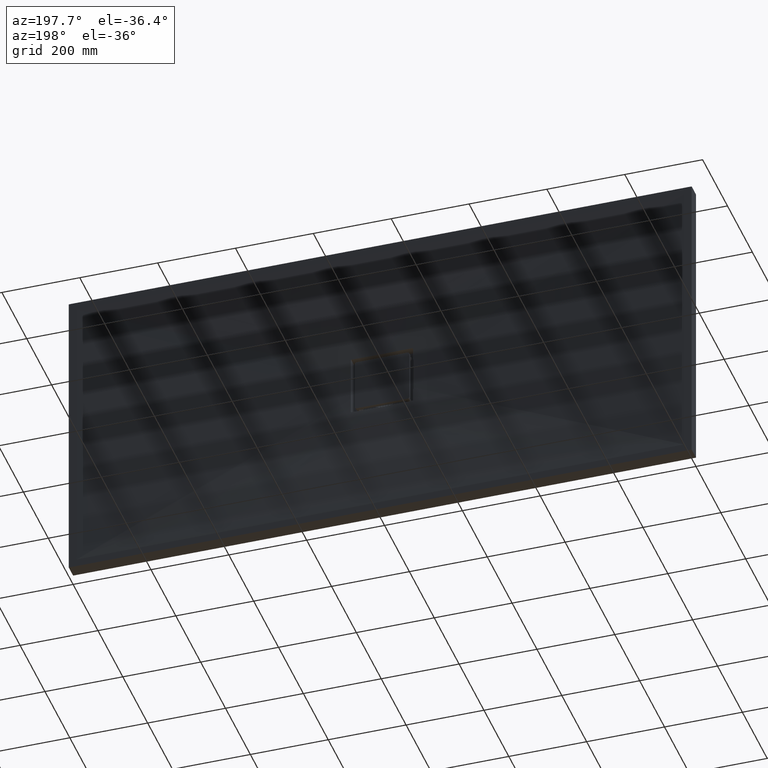
[diagram: clean part render]
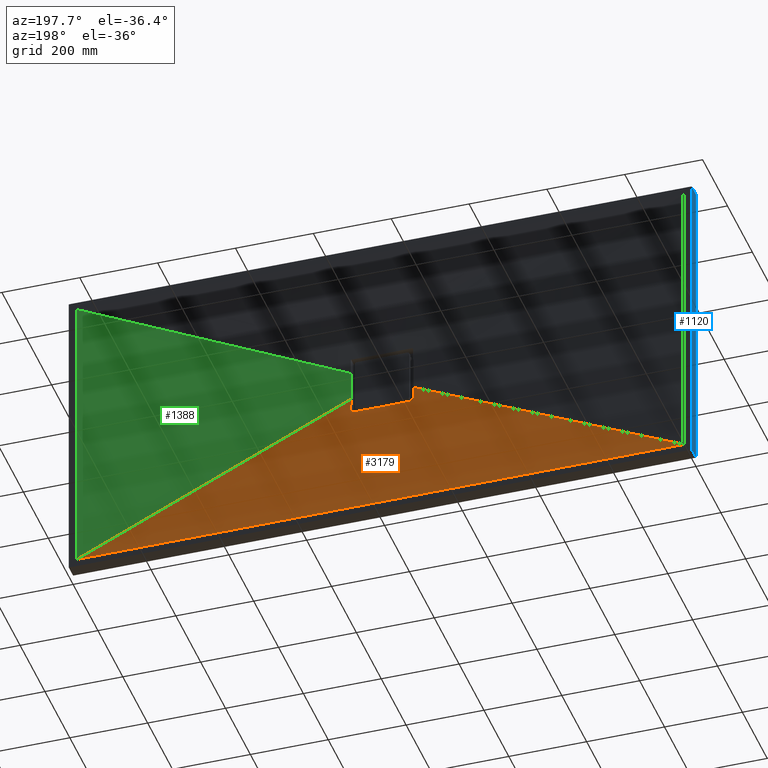
[diagram: same view with three faces highlighted in distinct colors, each labeled with its STEP entity id]
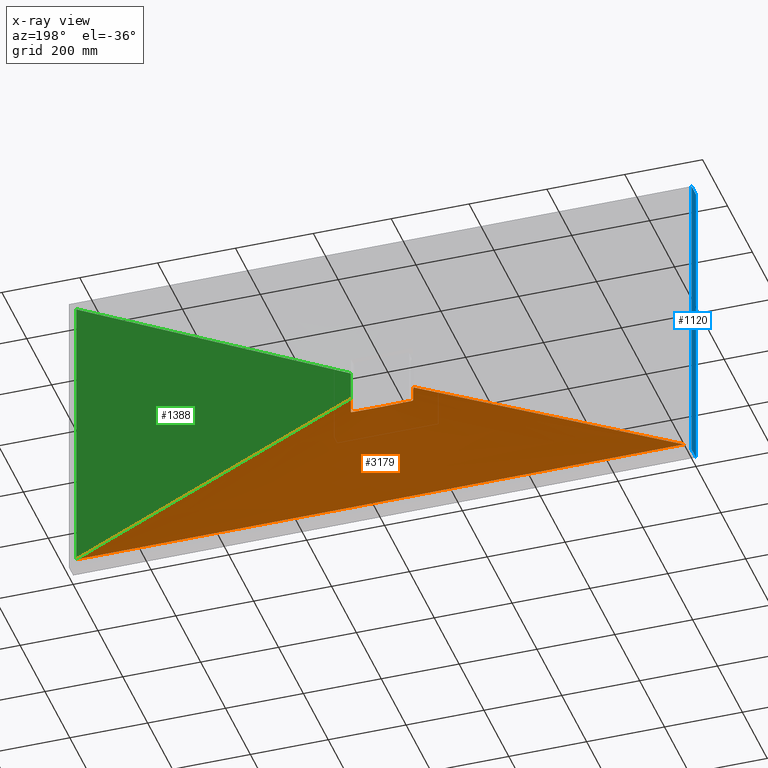
[diagram: x-ray of the same camera — body ghosted, the three highlighted faces saturated]
A machine part, auxiliary view with three faces highlighted in distinct colors.
The next image is the same camera in x-ray (body ghosted, the three faces saturated) — at least one of them is partly hidden behind the body in this view.
Their STEP definitions:

[orange] entity #3179 — the highlighted face is a freeform B-spline surface patch.
#3 = CARTESIAN_POINT ( 'NONE',  ( 65.63602154870589800, 19.99999999999999600, -45.84979169517532000 ) ) ;
#18 = CARTESIAN_POINT ( 'NONE',  ( 69.09643847232803200, 19.99999999999999600, -40.44716199775876900 ) ) ;
#21 = CARTESIAN_POINT ( 'NONE',  ( 64.99999999999749900, 35.00000000000000000, -379.9999999999999400 ) ) ;
#24 = B_SPLINE_CURVE_WITH_KNOTS ( 'NONE', 3,
 ( #1628, #1024, #3094, #1529, #2800, #1744, #859, #1281, #456, #765, #700, #261, #1057, #1073 ),
 .UNSPECIFIED., .F., .F.,
 ( 4, 2, 2, 2, 2, 2, 4 ),
 ( 0.0000000000000000000, 0.01937604881219790600, 0.03875209762439579100, 0.07750419524879159600, 0.1162562928731874100, 0.1356323416853852900, 0.1550083904975831900 ),
 .UNSPECIFIED. ) ;
#38 = ORIENTED_EDGE ( 'NONE', *, *, #2749, .T. ) ;
#39 = CARTESIAN_POINT ( 'NONE',  ( 4.167867337943003600, 20.00000000000000400, -79.99999999999998600 ) ) ;
#41 = CARTESIAN_POINT ( 'NONE',  ( -77.50000000000018500, 20.91526528105309900, -79.99999999999992900 ) ) ;
#64 = CARTESIAN_POINT ( 'NONE',  ( -4.167867337943405900, 19.99999999999999600, -79.99999999999998600 ) ) ;
#78 = CARTESIAN_POINT ( 'NONE',  ( 649.9999999999989800, 35.00000000000000000, -380.0000000000000000 ) ) ;
#80 = CARTESIAN_POINT ( 'NONE',  ( -32.50000000000254400, 35.00000000000000000, -379.9999999999999400 ) ) ;
#83 = CARTESIAN_POINT ( 'NONE',  ( -8.335427550194083300, 20.00000000000000000, -79.67233849711938400 ) ) ;
#90 = CARTESIAN_POINT ( 'NONE',  ( -65.00000000000255800, 35.00000000000000000, -379.9999999999999400 ) ) ;
#102 = CARTESIAN_POINT ( 'NONE',  ( -130.0000000000025600, 35.00000000000000000, -379.9999999999999400 ) ) ;
#107 = CARTESIAN_POINT ( 'NONE',  ( 129.9999999999975600, 35.00000000000000000, -379.9999999999999400 ) ) ;
#117 = CARTESIAN_POINT ( 'NONE',  ( -20.53644059850319100, 19.99999999999999300, -77.42613998269730800 ) ) ;
#119 = CARTESIAN_POINT ( 'NONE',  ( -162.5000000000025300, 35.00000000000000000, -379.9999999999999400 ) ) ;
#126 = CARTESIAN_POINT ( 'NONE',  ( -28.28534235702283800, 20.00000000000000700, -74.94325822128438100 ) ) ;
#142 = CARTESIAN_POINT ( 'NONE',  ( -227.5000000000024200, 35.00000000000000000, -379.9999999999999400 ) ) ;
#146 = EDGE_CURVE ( 'NONE', #3117, #1746, #2819, .T. ) ;
#148 = CARTESIAN_POINT ( 'NONE',  ( -32.01744375276299300, 20.00000000000000000, -73.41996666027260700 ) ) ;
#165 = CARTESIAN_POINT ( 'NONE',  ( -260.0000000000023300, 35.00000000000000000, -380.0000000000000000 ) ) ;
#175 = DIRECTION ( 'NONE',  ( -0.8988268892732868000, 0.01904076927280638400, -0.4378900229792936900 ) ) ;
#180 = CARTESIAN_POINT ( 'NONE',  ( -39.09556257958874400, 20.00000000000000000, -69.90811966747743600 ) ) ;
#189 = CARTESIAN_POINT ( 'NONE',  ( -425.9595947534909900, 27.50000000000000400, -207.5187769311877400 ) ) ;
#190 = CARTESIAN_POINT ( 'NONE',  ( -325.0000000000021600, 35.00000000000000000, -380.0000000000000000 ) ) ;
#196 = CARTESIAN_POINT ( 'NONE',  ( 63.68564301497404800, 20.00000000000000000, -48.53671480306866900 ) ) ;
#199 = CARTESIAN_POINT ( 'NONE',  ( -42.44147885884424900, 19.99999999999999600, -67.92007849769858300 ) ) ;
#200 = CARTESIAN_POINT ( 'NONE',  ( -80.00000000000024200, 20.17118407334168500, -38.97435897435888600 ) ) ;
#204 = CARTESIAN_POINT ( 'NONE',  ( 617.4999999999988600, 35.00000000000000000, -380.0000000000000000 ) ) ;
#207 = CARTESIAN_POINT ( 'NONE',  ( -357.5000000000021000, 35.00000000000000000, -380.0000000000000000 ) ) ;
#208 = CARTESIAN_POINT ( 'NONE',  ( 70.60675592568493600, 20.00000000000000400, -37.73149647661578100 ) ) ;
#210 = CARTESIAN_POINT ( 'NONE',  ( 78.60808864571888000, 20.92364626502050800, -79.74699066051117300 ) ) ;
#217 = CARTESIAN_POINT ( 'NONE',  ( 747.4999999999996600, 35.00000000000000000, -380.0000000000000000 ) ) ;
#221 = CARTESIAN_POINT ( 'NONE',  ( -48.68330336269389800, 19.99999999999999600, -63.59522123992633900 ) ) ;
#230 = CARTESIAN_POINT ( 'NONE',  ( -422.5000000000018800, 35.00000000000000000, -380.0000000000000000 ) ) ;
#232 = CARTESIAN_POINT ( 'NONE',  ( 59.31540533946460400, 20.00000000000000700, -53.78992935039195800 ) ) ;
#245 = CARTESIAN_POINT ( 'NONE',  ( -51.57932262493469000, 20.00000000000000000, -61.25885752582696900 ) ) ;
#259 = B_SPLINE_CURVE_WITH_KNOTS ( 'NONE', 3,
 ( #3104, #1263, #1278, #3223, #3245, #210, #699, #2141, #3169, #2176, #2186, #1112, #1851, #2166, #805, #812 ),
 .UNSPECIFIED., .F., .F.,
 ( 4, 2, 2, 2, 2, 2, 2, 4 ),
 ( 1.387778780781445700E-017, 0.0004882322326047627200, 0.0009764644652095115600, 0.001464696697814260300, 0.001952928930419009200, 0.002441161163023758000, 0.002929393395628506700, 0.003905857860837966400 ),
 .UNSPECIFIED. ) ;
#261 = CARTESIAN_POINT ( 'NONE',  ( 64.58342503299745400, 20.73014216491183200, -79.99999999999997200 ) ) ;
#263 = CARTESIAN_POINT ( 'NONE',  ( -455.0000000000017600, 35.00000000000000000, -380.0000000000000000 ) ) ;
#265 = CARTESIAN_POINT ( 'NONE',  ( -56.89525059378132000, 19.99999999999998900, -56.35605209458425700 ) ) ;
#270 = CARTESIAN_POINT ( 'NONE',  ( -520.0000000000014800, 35.00000000000000000, -380.0000000000000000 ) ) ;
#284 = CARTESIAN_POINT ( 'NONE',  ( -59.31540533946499500, 20.00000000000000000, -53.78992935039193700 ) ) ;
#288 = CARTESIAN_POINT ( 'NONE',  ( 79.99999999999984400, 20.17118407334168900, -38.97435897435897100 ) ) ;
#308 = CARTESIAN_POINT ( 'NONE',  ( -552.5000000000013600, 35.00000000000000000, -380.0000000000000000 ) ) ;
#313 = CARTESIAN_POINT ( 'NONE',  ( 32.49999999999749900, 35.00000000000000000, -379.9999999999999400 ) ) ;
#314 = ORIENTED_EDGE ( 'NONE', *, *, #2531, .T. ) ;
#339 = CARTESIAN_POINT ( 'NONE',  ( -63.68564301497446700, 20.00000000000000700, -48.53671480306866900 ) ) ;
#340 = CARTESIAN_POINT ( 'NONE',  ( -617.5000000000009100, 35.00000000000000000, -379.9999999999999400 ) ) ;
#345 = CARTESIAN_POINT ( 'NONE',  ( -65.63602154870631000, 19.99999999999999600, -45.84979169517529800 ) ) ;
#354 = EDGE_LOOP ( 'NONE', ( #1327, #430, #1359, #314, #2703, #380, #2976, #38 ) ) ;
#371 = CARTESIAN_POINT ( 'NONE',  ( -650.0000000000008000, 35.00000000000000000, -379.9999999999999400 ) ) ;
#376 = CARTESIAN_POINT ( 'NONE',  ( -69.09643847232841600, 19.99999999999999600, -40.44716199775876900 ) ) ;
#380 = ORIENTED_EDGE ( 'NONE', *, *, #903, .T. ) ;
#390 = CARTESIAN_POINT ( 'NONE',  ( 8.335427550193681900, 20.00000000000000000, -79.67233849711937000 ) ) ;
#403 = VERTEX_POINT ( 'NONE', #3202 ) ;
#411 = CARTESIAN_POINT ( 'NONE',  ( -715.0000000000004500, 35.00000000000000000, -379.9999999999999400 ) ) ;
#421 = CARTESIAN_POINT ( 'NONE',  ( -70.60675592568532000, 20.00000000000000400, -37.73149647661577400 ) ) ;
#430 = ORIENTED_EDGE ( 'NONE', *, *, #1472, .T. ) ;
#434 = CARTESIAN_POINT ( 'NONE',  ( -747.5000000000002300, 35.00000000000000000, -379.9999999999999400 ) ) ;
#441 = CARTESIAN_POINT ( 'NONE',  ( 779.9999999999998900, 35.00000000000000000, -379.9999999999999400 ) ) ;
#445 = CARTESIAN_POINT ( 'NONE',  ( -780.0000000000001100, 35.00000000000000000, -379.9999999999999400 ) ) ;
#456 = CARTESIAN_POINT ( 'NONE',  ( 25.83379188199321400, 20.16846388635039100, -79.99999999999995700 ) ) ;
#473 = DIRECTION ( 'NONE',  ( -1.000000000000000000, 0.0000000000000000000, 0.0000000000000000000 ) ) ;
#521 = CARTESIAN_POINT ( 'NONE',  ( 552.4999999999986400, 35.00000000000000000, -380.0000000000000000 ) ) ;
#696 = CARTESIAN_POINT ( 'NONE',  ( 227.4999999999976700, 35.00000000000000000, -379.9999999999999400 ) ) ;
#699 = CARTESIAN_POINT ( 'NONE',  ( 78.75163500503391800, 20.92348560418235300, -79.67027101366657900 ) ) ;
#700 = CARTESIAN_POINT ( 'NONE',  ( 51.66692436919245800, 20.53990979900312700, -79.99999999999998600 ) ) ;
#706 = EDGE_CURVE ( 'NONE', #1951, #2971, #259, .T. ) ;
#739 = CARTESIAN_POINT ( 'NONE',  ( 16.51998364309756800, 20.00000000000000000, -78.38527294381185600 ) ) ;
#765 = CARTESIAN_POINT ( 'NONE',  ( 45.20869479708817800, 20.44336612708412200, -79.99999999999997200 ) ) ;
#805 = CARTESIAN_POINT ( 'NONE',  ( 79.99999999999985800, 20.88981712303077000, -77.83004879686744500 ) ) ;
#812 = CARTESIAN_POINT ( 'NONE',  ( 79.99999999999981500, 20.88082018124752500, -77.49999999999998600 ) ) ;
#859 = CARTESIAN_POINT ( 'NONE',  ( -12.91947408764547900, 20.00000982222253400, -79.99999999999992900 ) ) ;
#871 = B_SPLINE_CURVE_WITH_KNOTS ( 'NONE', 3,
 ( #1801, #2678, #2640, #2240, #2299, #2310 ),
 .UNSPECIFIED., .F., .F.,
 ( 4, 2, 4 ),
 ( 0.0000000000000000000, 0.01926608808140744000, 0.03853217616281488100 ),
 .UNSPECIFIED. ) ;
#903 = EDGE_CURVE ( 'NONE', #2971, #1746, #871, .T. ) ;
#935 = CARTESIAN_POINT ( 'NONE',  ( 425.9595947534906500, 27.50000000000000400, -207.5187769311877700 ) ) ;
#972 = CARTESIAN_POINT ( 'NONE',  ( -71.91918950698180900, 20.00000000000000000, -35.03755386237558900 ) ) ;
#979 = CARTESIAN_POINT ( 'NONE',  ( 77.49999999999982900, 20.91526528105310900, -79.99999999999995700 ) ) ;
#996 = CARTESIAN_POINT ( 'NONE',  ( -16.51998364309797300, 19.99999999999999600, -78.38527294381182700 ) ) ;
#1024 = CARTESIAN_POINT ( 'NONE',  ( -71.04194233863492500, 20.82418576970605900, -79.99999999999995700 ) ) ;
#1057 = CARTESIAN_POINT ( 'NONE',  ( 71.04169101482052900, 20.82418222522700500, -80.00000000000002800 ) ) ;
#1073 = CARTESIAN_POINT ( 'NONE',  ( 77.49999999999982900, 20.91526528105310900, -79.99999999999995700 ) ) ;
#1112 = CARTESIAN_POINT ( 'NONE',  ( 79.66882854547465300, 20.91066941404019600, -78.75426155804932200 ) ) ;
#1145 = CARTESIAN_POINT ( 'NONE',  ( 519.9999999999984100, 35.00000000000000000, -380.0000000000000000 ) ) ;
#1167 = CARTESIAN_POINT ( 'NONE',  ( 779.9999999999998900, 35.00000000000000000, -379.9999999999999400 ) ) ;
#1206 = VERTEX_POINT ( 'NONE', #41 ) ;
#1243 = CARTESIAN_POINT ( 'NONE',  ( 51.57932262493429200, 19.99999999999999600, -61.25885752582699000 ) ) ;
#1263 = CARTESIAN_POINT ( 'NONE',  ( 77.66507043163296900, 20.91759330830825900, -79.99999999999997200 ) ) ;
#1278 = CARTESIAN_POINT ( 'NONE',  ( 77.82738987331569500, 20.91941526584665600, -79.98381153245485100 ) ) ;
#1281 = CARTESIAN_POINT ( 'NONE',  ( 12.91705562372911400, 19.99999017869684100, -79.99999999999994300 ) ) ;
#1327 = ORIENTED_EDGE ( 'NONE', *, *, #2378, .F. ) ;
#1359 = ORIENTED_EDGE ( 'NONE', *, *, #2899, .T. ) ;
#1383 = CARTESIAN_POINT ( 'NONE',  ( 454.9999999999980700, 35.00000000000000000, -380.0000000000000000 ) ) ;
#1451 = CARTESIAN_POINT ( 'NONE',  ( 48.68330336269350800, 20.00000000000000700, -63.59522123992633900 ) ) ;
#1467 = CARTESIAN_POINT ( 'NONE',  ( 162.4999999999975800, 35.00000000000000000, -379.9999999999999400 ) ) ;
#1472 = EDGE_CURVE ( 'NONE', #1482, #403, #2666, .T. ) ;
#1482 = VERTEX_POINT ( 'NONE', #3278 ) ;
#1529 = CARTESIAN_POINT ( 'NONE',  ( -51.66789955657417000, 20.53992422645193000, -79.99999999999990100 ) ) ;
#1628 = CARTESIAN_POINT ( 'NONE',  ( -77.50000000000018500, 20.91526528105309900, -79.99999999999992900 ) ) ;
#1669 = B_SPLINE_SURFACE_WITH_KNOTS ( 'NONE', 3, 1, ( 
 ( #445, #972 ),
 ( #434, #421 ),
 ( #411, #376 ),
 ( #371, #345 ),
 ( #340, #339 ),
 ( #308, #284 ),
 ( #270, #265 ),
 ( #263, #245 ),
 ( #230, #221 ),
 ( #207, #199 ),
 ( #190, #180 ),
 ( #165, #148 ),
 ( #142, #126 ),
 ( #119, #117 ),
 ( #102, #996 ),
 ( #90, #83 ),
 ( #80, #64 ),
 ( #313, #39 ),
 ( #21, #390 ),
 ( #107, #739 ),
 ( #1467, #2782 ),
 ( #696, #3113 ),
 ( #3074, #2685 ),
 ( #2466, #2241 ),
 ( #1890, #1727 ),
 ( #1703, #1451 ),
 ( #1383, #1243 ),
 ( #1145, #3033 ),
 ( #521, #232 ),
 ( #204, #196 ),
 ( #78, #3 ),
 ( #2547, #18 ),
 ( #217, #208 ),
 ( #3115, #3219 ) ),
 .UNSPECIFIED., .F., .F., .F.,
 ( 4, 2, 2, 2, 2, 2, 2, 2, 2, 2, 2, 2, 2, 2, 2, 2, 4 ),
 ( 2, 2 ),
 ( 0.0000000000000000000, 0.06249999999999998600, 0.1249999999999999700, 0.1874999999999999400, 0.2499999999999999400, 0.3124999999999999400, 0.3749999999999998900, 0.4374999999999999400, 0.5000000000000000000, 0.5625000000000000000, 0.6250000000000000000, 0.6875000000000000000, 0.7499999999999998900, 0.8124999999999998900, 0.8749999999999998900, 0.9374999999999998900, 1.000000000000000000 ),
 ( 0.0000000000000000000, 1.000000000000000000 ),
 .UNSPECIFIED. ) ;
#1703 = CARTESIAN_POINT ( 'NONE',  ( 422.4999999999980100, 35.00000000000000000, -380.0000000000000000 ) ) ;
#1727 = CARTESIAN_POINT ( 'NONE',  ( 42.44147885884385100, 19.99999999999999600, -67.92007849769856900 ) ) ;
#1744 = CARTESIAN_POINT ( 'NONE',  ( -25.83575296585158300, 20.16849003916327700, -79.99999999999990100 ) ) ;
#1746 = VERTEX_POINT ( 'NONE', #288 ) ;
#1801 = CARTESIAN_POINT ( 'NONE',  ( 79.99999999999981500, 20.88082018124752500, -77.49999999999998600 ) ) ;
#1851 = CARTESIAN_POINT ( 'NONE',  ( 79.74652486146108300, 20.90772418718538400, -78.60887397578544300 ) ) ;
#1890 = CARTESIAN_POINT ( 'NONE',  ( 357.4999999999979000, 35.00000000000000000, -380.0000000000000000 ) ) ;
#1903 = FACE_OUTER_BOUND ( 'NONE', #354, .T. ) ;
#1951 = VERTEX_POINT ( 'NONE', #979 ) ;
#2141 = CARTESIAN_POINT ( 'NONE',  ( 79.02331721310437700, 20.92217702405269700, -79.48901260097754600 ) ) ;
#2166 = CARTESIAN_POINT ( 'NONE',  ( 79.93369622469767000, 20.89788703278221900, -78.15804595222739700 ) ) ;
#2176 = CARTESIAN_POINT ( 'NONE',  ( 79.38255669104917400, 20.91777674830626300, -79.15304345921750000 ) ) ;
#2186 = CARTESIAN_POINT ( 'NONE',  ( 79.48604226813573300, 20.91571099035990900, -79.02729349662870100 ) ) ;
#2240 = CARTESIAN_POINT ( 'NONE',  ( 79.99999999999982900, 20.32500420699052100, -51.81776310176734100 ) ) ;
#2241 = CARTESIAN_POINT ( 'NONE',  ( 39.09556257958834600, 19.99999999999999600, -69.90811966747740800 ) ) ;
#2264 = DIRECTION ( 'NONE',  ( -0.8988268892732869100, -0.01904076927280637700, 0.4378900229792934700 ) ) ;
#2299 = CARTESIAN_POINT ( 'NONE',  ( 79.99999999999992900, 20.23647958024087500, -45.39627497638789300 ) ) ;
#2310 = CARTESIAN_POINT ( 'NONE',  ( 79.99999999999984400, 20.17118407334168900, -38.97435897435897100 ) ) ;
#2355 = CARTESIAN_POINT ( 'NONE',  ( 79.99999999999981500, 20.88082018124752500, -77.49999999999998600 ) ) ;
#2378 = EDGE_CURVE ( 'NONE', #1482, #2884, #3054, .T. ) ;
#2466 = CARTESIAN_POINT ( 'NONE',  ( 324.9999999999978400, 35.00000000000000000, -380.0000000000000000 ) ) ;
#2474 = CARTESIAN_POINT ( 'NONE',  ( -77.50000000000018500, 20.91526528105309900, -79.99999999999992900 ) ) ;
#2479 = CARTESIAN_POINT ( 'NONE',  ( -77.83014303288055700, 20.91992136616198300, -79.99999999999995700 ) ) ;
#2487 = CARTESIAN_POINT ( 'NONE',  ( -78.15822712927328600, 20.92263223277539200, -79.93365587166617600 ) ) ;
#2493 = CARTESIAN_POINT ( 'NONE',  ( -78.60912615202225600, 20.92364416022802600, -79.74640271161519000 ) ) ;
#2497 = CARTESIAN_POINT ( 'NONE',  ( -78.75455503439691500, 20.92348090553447500, -79.66865903924281200 ) ) ;
#2500 = CARTESIAN_POINT ( 'NONE',  ( -79.02756730855372800, 20.92214693808416100, -79.48583193665980700 ) ) ;
#2512 = CARTESIAN_POINT ( 'NONE',  ( -79.15330567327399100, 20.92099491071355300, -79.38232675072526900 ) ) ;
#2516 = CARTESIAN_POINT ( 'NONE',  ( -79.38374377257788700, 20.91775553067563100, -79.15169096535946400 ) ) ;
#2531 = EDGE_CURVE ( 'NONE', #1206, #1951, #24, .T. ) ;
#2534 = CARTESIAN_POINT ( 'NONE',  ( -79.48922544385557400, 20.91563681333540700, -79.02303659941517800 ) ) ;
#2538 = CARTESIAN_POINT ( 'NONE',  ( -79.67042079298224200, 20.91061151295204500, -78.75137201943749700 ) ) ;
#2546 = CARTESIAN_POINT ( 'NONE',  ( -79.74711135334476400, 20.90770367966287700, -78.60783971361219400 ) ) ;
#2547 = CARTESIAN_POINT ( 'NONE',  ( 714.9999999999994300, 35.00000000000000000, -380.0000000000000000 ) ) ;
#2581 = CARTESIAN_POINT ( 'NONE',  ( -79.87242764546799400, 20.90109666377056300, -78.30523619665685000 ) ) ;
#2585 = CARTESIAN_POINT ( 'NONE',  ( -79.92041763625931600, 20.89740054680597900, -78.14658210755773400 ) ) ;
#2593 = CARTESIAN_POINT ( 'NONE',  ( -79.98382034224749800, 20.88952902318444100, -77.82730179218359000 ) ) ;
#2621 = CARTESIAN_POINT ( 'NONE',  ( -80.00000000000019900, 20.88531866984212500, -77.66502504785958600 ) ) ;
#2640 = CARTESIAN_POINT ( 'NONE',  ( 79.99999999999987200, 20.55955026306167700, -64.65968027067567900 ) ) ;
#2654 = CARTESIAN_POINT ( 'NONE',  ( -80.00000000000017100, 20.88082018124751800, -77.49999999999992900 ) ) ;
#2666 = B_SPLINE_CURVE_WITH_KNOTS ( 'NONE', 3,
 ( #200, #2964, #3294, #3275, #3214, #3070 ),
 .UNSPECIFIED., .F., .F.,
 ( 4, 2, 4 ),
 ( 0.0000000000000000000, 0.01926608808140742300, 0.03853217616281481800 ),
 .UNSPECIFIED. ) ;
#2678 = CARTESIAN_POINT ( 'NONE',  ( 79.99999999999981500, 20.70581750273649400, -71.08010478641738000 ) ) ;
#2685 = CARTESIAN_POINT ( 'NONE',  ( 32.01744375276259500, 20.00000000000000000, -73.41996666027259300 ) ) ;
#2703 = ORIENTED_EDGE ( 'NONE', *, *, #706, .T. ) ;
#2749 = EDGE_CURVE ( 'NONE', #3117, #2884, #2929, .T. ) ;
#2769 = CARTESIAN_POINT ( 'NONE',  ( -780.0000000000001100, 35.00000000000000000, -379.9999999999999400 ) ) ;
#2782 = CARTESIAN_POINT ( 'NONE',  ( 20.53644059850278600, 20.00000000000000000, -77.42613998269735000 ) ) ;
#2800 = CARTESIAN_POINT ( 'NONE',  ( -45.20990639448810800, 20.44338415415032600, -79.99999999999992900 ) ) ;
#2819 = LINE ( 'NONE', #935, #2820 ) ;
#2820 = VECTOR ( 'NONE', #2264, 1000.000000000000200 ) ;
#2884 = VERTEX_POINT ( 'NONE', #2769 ) ;
#2899 = EDGE_CURVE ( 'NONE', #403, #1206, #3044, .T. ) ;
#2929 = LINE ( 'NONE', #441, #2970 ) ;
#2951 = VECTOR ( 'NONE', #175, 1000.000000000000100 ) ;
#2964 = CARTESIAN_POINT ( 'NONE',  ( -80.00000000000025600, 20.23647958024087900, -45.39627497638787900 ) ) ;
#2970 = VECTOR ( 'NONE', #473, 1000.000000000000000 ) ;
#2971 = VERTEX_POINT ( 'NONE', #2355 ) ;
#2976 = ORIENTED_EDGE ( 'NONE', *, *, #146, .F. ) ;
#3033 = CARTESIAN_POINT ( 'NONE',  ( 56.89525059378094300, 20.00000000000000000, -56.35605209458427800 ) ) ;
#3044 = B_SPLINE_CURVE_WITH_KNOTS ( 'NONE', 3,
 ( #2654, #2621, #2593, #2585, #2581, #2546, #2538, #2534, #2516, #2512, #2500, #2497, #2493, #2487, #2479, #2474 ),
 .UNSPECIFIED., .F., .F.,
 ( 4, 2, 2, 2, 2, 2, 2, 4 ),
 ( 0.0000000000000000000, 0.0004882323058037042000, 0.0009764646116074084000, 0.001464696917411112700, 0.001952929223214816800, 0.002441161529018521100, 0.002929393834822225400, 0.003905858446429656200 ),
 .UNSPECIFIED. ) ;
#3054 = LINE ( 'NONE', #189, #2951 ) ;
#3070 = CARTESIAN_POINT ( 'NONE',  ( -80.00000000000017100, 20.88082018124751800, -77.49999999999992900 ) ) ;
#3074 = CARTESIAN_POINT ( 'NONE',  ( 259.9999999999977300, 35.00000000000000000, -380.0000000000000000 ) ) ;
#3094 = CARTESIAN_POINT ( 'NONE',  ( -64.58391960340213700, 20.73014938383708700, -79.99999999999992900 ) ) ;
#3104 = CARTESIAN_POINT ( 'NONE',  ( 77.49999999999982900, 20.91526528105310900, -79.99999999999995700 ) ) ;
#3113 = CARTESIAN_POINT ( 'NONE',  ( 28.28534235702241900, 19.99999999999999600, -74.94325822128436700 ) ) ;
#3115 = CARTESIAN_POINT ( 'NONE',  ( 779.9999999999998900, 35.00000000000000000, -379.9999999999999400 ) ) ;
#3117 = VERTEX_POINT ( 'NONE', #1167 ) ;
#3169 = CARTESIAN_POINT ( 'NONE',  ( 79.15195886678475300, 20.92100926310206100, -79.38350850158073500 ) ) ;
#3179 = ADVANCED_FACE ( 'NONE', ( #1903 ), #1669, .F. ) ;
#3202 = CARTESIAN_POINT ( 'NONE',  ( -80.00000000000017100, 20.88082018124751800, -77.49999999999992900 ) ) ;
#3214 = CARTESIAN_POINT ( 'NONE',  ( -80.00000000000022700, 20.70581750273648700, -71.08010478641730900 ) ) ;
#3219 = CARTESIAN_POINT ( 'NONE',  ( 71.91918950698142500, 20.00000000000000000, -35.03755386237560300 ) ) ;
#3223 = CARTESIAN_POINT ( 'NONE',  ( 78.14675063949775300, 20.92209702544252900, -79.92037548083236200 ) ) ;
#3245 = CARTESIAN_POINT ( 'NONE',  ( 78.30544561150691200, 20.92295813301355500, -79.87235849780337600 ) ) ;
#3275 = CARTESIAN_POINT ( 'NONE',  ( -80.00000000000015600, 20.55955026306167400, -64.65968027067562200 ) ) ;
#3278 = CARTESIAN_POINT ( 'NONE',  ( -80.00000000000024200, 20.17118407334168500, -38.97435897435888600 ) ) ;
#3294 = CARTESIAN_POINT ( 'NONE',  ( -80.00000000000017100, 20.32500420699052800, -51.81776310176733300 ) ) ;

[blue] entity #1120 — the highlighted planar face has unit normal (1, 0, 0).
#22 = VERTEX_POINT ( 'NONE', #1911 ) ;
#52 = DIRECTION ( 'NONE',  ( 0.0000000000000000000, 0.0000000000000000000, 1.000000000000000000 ) ) ;
#56 = LINE ( 'NONE', #1969, #591 ) ;
#71 = ORIENTED_EDGE ( 'NONE', *, *, #1207, .T. ) ;
#147 = CARTESIAN_POINT ( 'NONE',  ( -800.0000000000001100, 35.00000000000000000, -399.9999999999999400 ) ) ;
#227 = ORIENTED_EDGE ( 'NONE', *, *, #2357, .F. ) ;
#469 = EDGE_LOOP ( 'NONE', ( #71, #227, #2091, #2870 ) ) ;
#504 = DIRECTION ( 'NONE',  ( -0.0000000000000000000, -1.000000000000000000, -0.0000000000000000000 ) ) ;
#591 = VECTOR ( 'NONE', #3287, 1000.000000000000000 ) ;
#817 = EDGE_CURVE ( 'NONE', #2450, #2446, #1750, .T. ) ;
#1120 = ADVANCED_FACE ( 'NONE', ( #1169 ), #2754, .F. ) ;
#1169 = FACE_OUTER_BOUND ( 'NONE', #469, .T. ) ;
#1207 = EDGE_CURVE ( 'NONE', #2446, #22, #2576, .T. ) ;
#1575 = CARTESIAN_POINT ( 'NONE',  ( -800.0000000000001100, 0.0000000000000000000, -399.9999999999999400 ) ) ;
#1750 = LINE ( 'NONE', #147, #1763 ) ;
#1763 = VECTOR ( 'NONE', #504, 1000.000000000000000 ) ;
#1764 = CARTESIAN_POINT ( 'NONE',  ( -800.0000000000001100, 35.00000000000000000, -399.9999999999999400 ) ) ;
#1877 = CARTESIAN_POINT ( 'NONE',  ( -800.0000000000001100, 35.00000000000000000, 400.0000000000000600 ) ) ;
#1911 = CARTESIAN_POINT ( 'NONE',  ( -800.0000000000001100, 0.0000000000000000000, 400.0000000000000600 ) ) ;
#1969 = CARTESIAN_POINT ( 'NONE',  ( -800.0000000000001100, 35.00000000000000000, 400.0000000000000600 ) ) ;
#2091 = ORIENTED_EDGE ( 'NONE', *, *, #2628, .F. ) ;
#2106 = AXIS2_PLACEMENT_3D ( 'NONE', #3015, #2720, #2682 ) ;
#2277 = CARTESIAN_POINT ( 'NONE',  ( -800.0000000000001100, 0.0000000000000000000, -399.9999999999999400 ) ) ;
#2328 = VERTEX_POINT ( 'NONE', #1877 ) ;
#2357 = EDGE_CURVE ( 'NONE', #2328, #22, #56, .T. ) ;
#2446 = VERTEX_POINT ( 'NONE', #2277 ) ;
#2450 = VERTEX_POINT ( 'NONE', #1764 ) ;
#2576 = LINE ( 'NONE', #1575, #2605 ) ;
#2605 = VECTOR ( 'NONE', #52, 1000.000000000000000 ) ;
#2628 = EDGE_CURVE ( 'NONE', #2450, #2328, #3076, .T. ) ;
#2682 = DIRECTION ( 'NONE',  ( 0.0000000000000000000, 0.0000000000000000000, -1.000000000000000000 ) ) ;
#2720 = DIRECTION ( 'NONE',  ( 1.000000000000000000, 0.0000000000000000000, 0.0000000000000000000 ) ) ;
#2753 = DIRECTION ( 'NONE',  ( 0.0000000000000000000, 0.0000000000000000000, 1.000000000000000000 ) ) ;
#2754 = PLANE ( 'NONE',  #2106 ) ;
#2870 = ORIENTED_EDGE ( 'NONE', *, *, #817, .T. ) ;
#2893 = CARTESIAN_POINT ( 'NONE',  ( -800.0000000000001100, 35.00000000000000000, -399.9999999999999400 ) ) ;
#3015 = CARTESIAN_POINT ( 'NONE',  ( -800.0000000000001100, 35.00000000000000000, -399.9999999999999400 ) ) ;
#3018 = VECTOR ( 'NONE', #2753, 1000.000000000000000 ) ;
#3076 = LINE ( 'NONE', #2893, #3018 ) ;
#3287 = DIRECTION ( 'NONE',  ( -0.0000000000000000000, -1.000000000000000000, -0.0000000000000000000 ) ) ;

[green] entity #1388 — the highlighted face is a freeform B-spline surface patch.
#108 = CARTESIAN_POINT ( 'NONE',  ( 76.35475575284441200, 20.00000000000000400, 24.05963620144375200 ) ) ;
#146 = EDGE_CURVE ( 'NONE', #3117, #1746, #2819, .T. ) ;
#257 = CARTESIAN_POINT ( 'NONE',  ( 779.9999999999997700, 35.00000000000000000, -31.66666666666586500 ) ) ;
#288 = CARTESIAN_POINT ( 'NONE',  ( 79.99999999999984400, 20.17118407334168900, -38.97435897435897100 ) ) ;
#297 = CARTESIAN_POINT ( 'NONE',  ( 779.9999999999998900, 35.00000000000000000, 380.0000000000000600 ) ) ;
#317 = CARTESIAN_POINT ( 'NONE',  ( 79.99999999999987200, 20.00000000000000000, -3.075104510152721500 ) ) ;
#538 = CARTESIAN_POINT ( 'NONE',  ( 779.9999999999997700, 35.00000000000000000, 316.6666666666669700 ) ) ;
#587 = EDGE_CURVE ( 'NONE', #839, #3152, #2786, .T. ) ;
#597 = FACE_OUTER_BOUND ( 'NONE', #741, .T. ) ;
#609 = EDGE_CURVE ( 'NONE', #1746, #3152, #1705, .T. ) ;
#672 = CARTESIAN_POINT ( 'NONE',  ( 77.20953429688154300, 20.00000000000000400, -21.16358934372487300 ) ) ;
#733 = DIRECTION ( 'NONE',  ( 0.0000000000000000000, 0.0000000000000000000, -1.000000000000000000 ) ) ;
#741 = EDGE_LOOP ( 'NONE', ( #3052, #2083, #1737, #998 ) ) ;
#768 = CARTESIAN_POINT ( 'NONE',  ( 79.99999999999984400, 20.07378911010035700, -25.98311821214705100 ) ) ;
#818 = CARTESIAN_POINT ( 'NONE',  ( 779.9999999999998900, 35.00000000000000000, -348.3333333333331400 ) ) ;
#839 = VERTEX_POINT ( 'NONE', #297 ) ;
#887 = VECTOR ( 'NONE', #733, 1000.000000000000000 ) ;
#913 = LINE ( 'NONE', #2242, #887 ) ;
#917 = CARTESIAN_POINT ( 'NONE',  ( 79.99999999999984400, 20.17118407334168900, -38.97435897435897100 ) ) ;
#934 = CARTESIAN_POINT ( 'NONE',  ( 779.9999999999997700, 35.00000000000000000, -126.6666666666659300 ) ) ;
#935 = CARTESIAN_POINT ( 'NONE',  ( 425.9595947534906500, 27.50000000000000400, -207.5187769311877700 ) ) ;
#992 = CARTESIAN_POINT ( 'NONE',  ( 79.99999999999984400, 20.17118407334168900, 38.97435897435907700 ) ) ;
#998 = ORIENTED_EDGE ( 'NONE', *, *, #1337, .T. ) ;
#1151 = DIRECTION ( 'NONE',  ( -0.8988268892732869100, -0.01904076927280637700, -0.4378900229792934700 ) ) ;
#1167 = CARTESIAN_POINT ( 'NONE',  ( 779.9999999999998900, 35.00000000000000000, -379.9999999999999400 ) ) ;
#1316 = CARTESIAN_POINT ( 'NONE',  ( 779.9999999999998900, 35.00000000000000000, -379.9999999999999400 ) ) ;
#1337 = EDGE_CURVE ( 'NONE', #839, #3117, #913, .T. ) ;
#1361 = CARTESIAN_POINT ( 'NONE',  ( 76.35475575284439700, 20.00000000000000000, -24.05963620144362000 ) ) ;
#1372 = CARTESIAN_POINT ( 'NONE',  ( 779.9999999999997700, 35.00000000000000000, 221.6666666666672300 ) ) ;
#1388 = ADVANCED_FACE ( 'NONE', ( #597 ), #1582, .F. ) ;
#1399 = CARTESIAN_POINT ( 'NONE',  ( 79.11758344910974500, 19.99999999999999300, 12.23935026591464300 ) ) ;
#1526 = CARTESIAN_POINT ( 'NONE',  ( 779.9999999999997700, 35.00000000000000000, 31.66666666666748100 ) ) ;
#1537 = CARTESIAN_POINT ( 'NONE',  ( 779.9999999999997700, 35.00000000000000000, 126.6666666666674000 ) ) ;
#1555 = CARTESIAN_POINT ( 'NONE',  ( 73.19797094516775400, 19.99999999999999600, -32.41268669978259700 ) ) ;
#1562 = CARTESIAN_POINT ( 'NONE',  ( 779.9999999999997700, 35.00000000000000000, -253.3333333333328600 ) ) ;
#1570 = CARTESIAN_POINT ( 'NONE',  ( 779.9999999999998900, 35.00000000000000000, -316.6666666666664000 ) ) ;
#1582 = B_SPLINE_SURFACE_WITH_KNOTS ( 'NONE', 3, 1, ( 
 ( #1316, #1822 ),
 ( #818, #1555 ),
 ( #1570, #2542 ),
 ( #1562, #1361 ),
 ( #3252, #672 ),
 ( #2042, #2723 ),
 ( #934, #2949 ),
 ( #2892, #2589 ),
 ( #257, #317 ),
 ( #1526, #2828 ),
 ( #2453, #2797 ),
 ( #1537, #1399 ),
 ( #3247, #1670 ),
 ( #1372, #1837 ),
 ( #2238, #108 ),
 ( #538, #2527 ),
 ( #2104, #2107 ),
 ( #1691, #2664 ) ),
 .UNSPECIFIED., .F., .F., .F.,
 ( 4, 2, 2, 2, 2, 2, 2, 2, 4 ),
 ( 2, 2 ),
 ( 0.0000000000000000000, 0.1250000000000000000, 0.2500000000000000000, 0.3750000000000000000, 0.5000000000000000000, 0.6250000000000000000, 0.7500000000000000000, 0.8750000000000000000, 1.000000000000000000 ),
 ( 0.0000000000000000000, 1.000000000000000000 ),
 .UNSPECIFIED. ) ;
#1670 = CARTESIAN_POINT ( 'NONE',  ( 78.59098933455783300, 20.00000000000000400, 15.25339620106210600 ) ) ;
#1691 = CARTESIAN_POINT ( 'NONE',  ( 779.9999999999998900, 35.00000000000000000, 380.0000000000000600 ) ) ;
#1705 = B_SPLINE_CURVE_WITH_KNOTS ( 'NONE', 3,
 ( #917, #768, #2615, #3210, #3234, #3191 ),
 .UNSPECIFIED., .F., .F.,
 ( 4, 2, 4 ),
 ( 0.0000000000000000000, 0.03897462970520392700, 0.07794925941040785300 ),
 .UNSPECIFIED. ) ;
#1737 = ORIENTED_EDGE ( 'NONE', *, *, #587, .F. ) ;
#1746 = VERTEX_POINT ( 'NONE', #288 ) ;
#1822 = CARTESIAN_POINT ( 'NONE',  ( 71.91918950698142500, 20.00000000000000000, -35.03755386237558900 ) ) ;
#1837 = CARTESIAN_POINT ( 'NONE',  ( 77.20953429688155700, 20.00000000000000400, 21.16358934372500000 ) ) ;
#1858 = CARTESIAN_POINT ( 'NONE',  ( 425.9595947534906500, 27.50000000000000400, 207.5187769311878900 ) ) ;
#2033 = VECTOR ( 'NONE', #1151, 1000.000000000000200 ) ;
#2042 = CARTESIAN_POINT ( 'NONE',  ( 779.9999999999997700, 35.00000000000000000, -158.3333333333326600 ) ) ;
#2083 = ORIENTED_EDGE ( 'NONE', *, *, #609, .T. ) ;
#2104 = CARTESIAN_POINT ( 'NONE',  ( 779.9999999999997700, 35.00000000000000000, 348.3333333333334800 ) ) ;
#2107 = CARTESIAN_POINT ( 'NONE',  ( 73.19797094516776800, 20.00000000000000000, 32.41268669978272500 ) ) ;
#2238 = CARTESIAN_POINT ( 'NONE',  ( 779.9999999999997700, 35.00000000000000000, 253.3333333333338500 ) ) ;
#2242 = CARTESIAN_POINT ( 'NONE',  ( 779.9999999999998900, 35.00000000000000000, 380.0000000000000600 ) ) ;
#2264 = DIRECTION ( 'NONE',  ( -0.8988268892732869100, -0.01904076927280637700, 0.4378900229792934700 ) ) ;
#2453 = CARTESIAN_POINT ( 'NONE',  ( 779.9999999999997700, 35.00000000000000000, 63.33333333333413200 ) ) ;
#2527 = CARTESIAN_POINT ( 'NONE',  ( 74.34892120281337200, 20.00000000000000700, 29.68421695447259300 ) ) ;
#2542 = CARTESIAN_POINT ( 'NONE',  ( 74.34892120281337200, 20.00000000000000700, -29.68421695447245800 ) ) ;
#2589 = CARTESIAN_POINT ( 'NONE',  ( 79.82211138100524300, 20.00000000000000000, -6.150141497313635200 ) ) ;
#2615 = CARTESIAN_POINT ( 'NONE',  ( 79.99999999989579200, 20.00000036731836100, -12.99177373445065700 ) ) ;
#2664 = CARTESIAN_POINT ( 'NONE',  ( 71.91918950698142500, 20.00000000000000000, 35.03755386237572400 ) ) ;
#2723 = CARTESIAN_POINT ( 'NONE',  ( 78.59098933455781800, 20.00000000000000400, -15.25339620106196900 ) ) ;
#2786 = LINE ( 'NONE', #1858, #2033 ) ;
#2797 = CARTESIAN_POINT ( 'NONE',  ( 79.82211138100524300, 20.00000000000000000, 6.150141497313770200 ) ) ;
#2819 = LINE ( 'NONE', #935, #2820 ) ;
#2820 = VECTOR ( 'NONE', #2264, 1000.000000000000200 ) ;
#2828 = CARTESIAN_POINT ( 'NONE',  ( 79.99999999999985800, 19.99999999999999300, 3.075104510152854200 ) ) ;
#2892 = CARTESIAN_POINT ( 'NONE',  ( 779.9999999999997700, 35.00000000000000000, -63.33333333333254700 ) ) ;
#2949 = CARTESIAN_POINT ( 'NONE',  ( 79.11758344910975900, 20.00000000000000000, -12.23935026591451000 ) ) ;
#3052 = ORIENTED_EDGE ( 'NONE', *, *, #146, .T. ) ;
#3117 = VERTEX_POINT ( 'NONE', #1167 ) ;
#3152 = VERTEX_POINT ( 'NONE', #992 ) ;
#3191 = CARTESIAN_POINT ( 'NONE',  ( 79.99999999999984400, 20.17118407334168900, 38.97435897435907700 ) ) ;
#3210 = CARTESIAN_POINT ( 'NONE',  ( 79.99999999989579200, 19.99999963268163600, 12.99156331912400800 ) ) ;
#3234 = CARTESIAN_POINT ( 'NONE',  ( 79.99999999999990100, 20.07378874234539600, 25.98306915834346900 ) ) ;
#3247 = CARTESIAN_POINT ( 'NONE',  ( 779.9999999999997700, 35.00000000000000000, 158.3333333333340500 ) ) ;
#3252 = CARTESIAN_POINT ( 'NONE',  ( 779.9999999999997700, 35.00000000000000000, -221.6666666666661200 ) ) ;